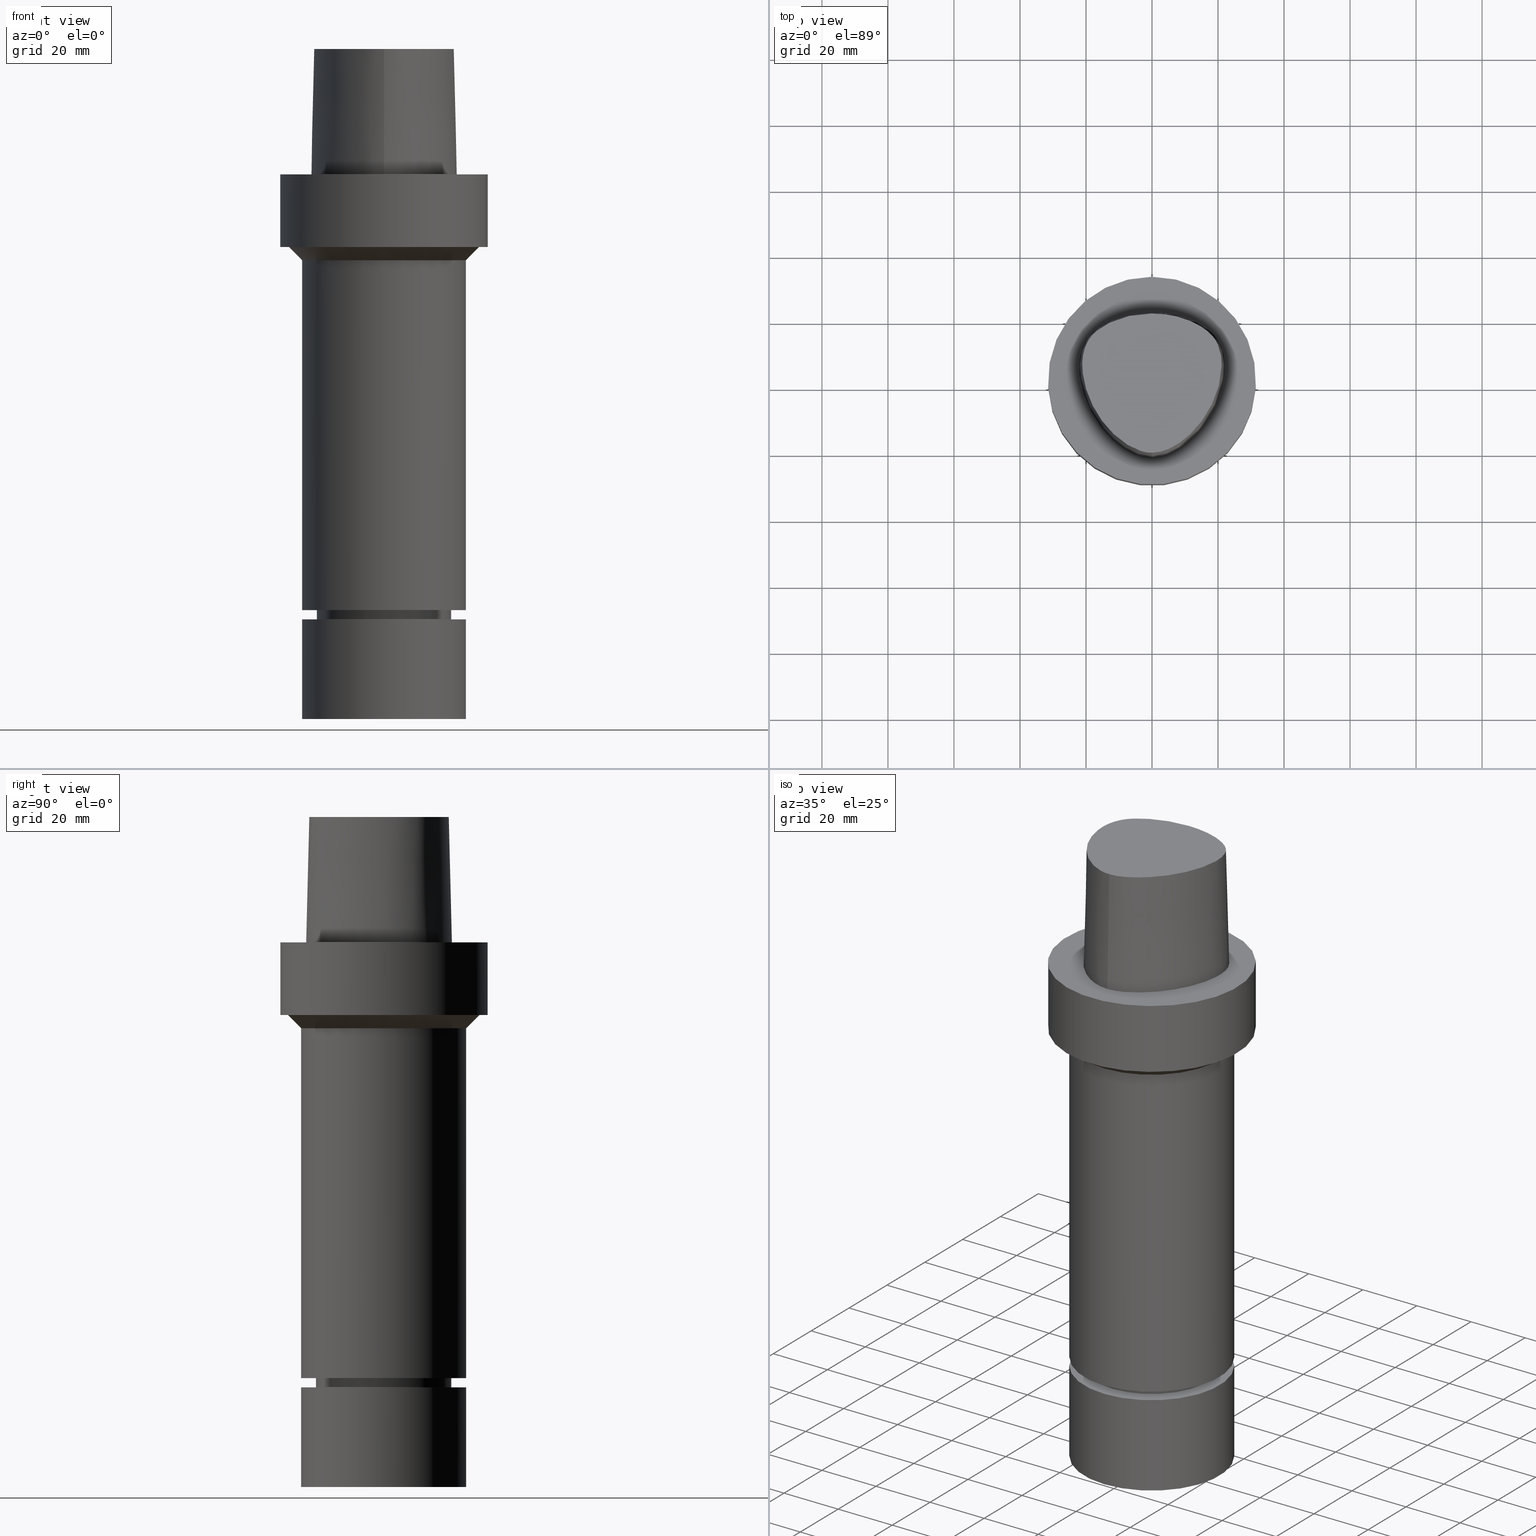
[diagram: canonical four-view strip — front | top / right | iso, engineering-drawing reading convention]
A machine part, canonical four-view strip (front | top / right | iso — engineering-drawing reading convention). The complete STEP part file that produces these views, byte-faithful:
ISO-10303-21;
HEADER;
FILE_DESCRIPTION((''),'1');
FILE_NAME('V:/90_\X2\53D65F9730C730FC30BF\X0\/00_\X2\6DE18DEF30C730FC30BF\X0\/ALL/CAPTO-BKUS\X2\52A05DE556F3\X0\_201801/C6-MEGAER/C6-MEGAER32-165NL.stp','2018-02-01T09:00:25',(''),(''),'Spatial Interop R21 SP3','Kubotek KeyCreator 2011 V10.0.2 (22737)',' ');
FILE_SCHEMA(('automotive_design'));
ENDSEC;
DATA;
#1=MECHANICAL_DESIGN_GEOMETRIC_PRESENTATION_REPRESENTATION(' ',(#14,#15,#16,#17,#18,#19,#20,#21,#22,#23,#24,#25,#26,#27,#28,#29,#30,#31,#32,#33,#34,#35,#36,#37,#38,#39,#40,#41,#42,#43,#44,#45,#46,#47,#48,#49,#50,#51,#52,#53),#10);
#2=PRODUCT_DEFINITION_CONTEXT('',#54,'design');
#3=APPLICATION_PROTOCOL_DEFINITION('INTERNATIONAL STANDARD','automotive_design',1994,#54);
#4=PRODUCT_CATEGORY_RELATIONSHIP('NONE','NONE',#55,#56);
#5=SHAPE_DEFINITION_REPRESENTATION(#57,#58);
#6=PRODUCT_DEFINITION_CONTEXT('',#59,'design');
#7=APPLICATION_PROTOCOL_DEFINITION('INTERNATIONAL STANDARD','automotive_design',1994,#59);
#8=PRODUCT_CATEGORY_RELATIONSHIP('NONE','NONE',#60,#61);
#9=SHAPE_DEFINITION_REPRESENTATION(#62,#63);
#10= (GEOMETRIC_REPRESENTATION_CONTEXT(3)GLOBAL_UNCERTAINTY_ASSIGNED_CONTEXT((#66))GLOBAL_UNIT_ASSIGNED_CONTEXT((#68,#69,#70))REPRESENTATION_CONTEXT('NONE','WORKSPACE'));
#14=STYLED_ITEM('',(#72),#73);
#15=STYLED_ITEM('',(#74,#75),#76);
#16=STYLED_ITEM('',(#77,#78),#79);
#17=STYLED_ITEM('',(#80,#81),#82);
#18=STYLED_ITEM('',(#83,#84),#85);
#19=STYLED_ITEM('',(#86,#87),#88);
#20=STYLED_ITEM('',(#89),#90);
#21=STYLED_ITEM('',(#91),#92);
#22=STYLED_ITEM('',(#93),#94);
#23=STYLED_ITEM('',(#95),#96);
#24=STYLED_ITEM('',(#97,#98),#99);
#25=STYLED_ITEM('',(#100),#101);
#26=STYLED_ITEM('',(#102,#103),#104);
#27=STYLED_ITEM('',(#105,#106),#107);
#28=STYLED_ITEM('',(#108),#109);
#29=STYLED_ITEM('',(#110),#111);
#30=STYLED_ITEM('',(#112,#113),#114);
#31=STYLED_ITEM('',(#115),#116);
#32=STYLED_ITEM('',(#117),#118);
#33=STYLED_ITEM('',(#119,#120),#121);
#34=STYLED_ITEM('',(#122,#123),#124);
#35=STYLED_ITEM('',(#125,#126),#127);
#36=STYLED_ITEM('',(#128),#129);
#37=STYLED_ITEM('',(#130,#131),#132);
#38=STYLED_ITEM('',(#133),#134);
#39=STYLED_ITEM('',(#135),#136);
#40=STYLED_ITEM('',(#137),#138);
#41=STYLED_ITEM('',(#139),#140);
#42=STYLED_ITEM('',(#141),#142);
#43=STYLED_ITEM('',(#143,#144),#145);
#44=STYLED_ITEM('',(#146,#147),#148);
#45=STYLED_ITEM('',(#149,#150),#151);
#46=STYLED_ITEM('',(#152,#153),#154);
#47=STYLED_ITEM('',(#155),#156);
#48=STYLED_ITEM('',(#157,#158),#159);
#49=STYLED_ITEM('',(#160,#161),#162);
#50=STYLED_ITEM('',(#163),#164);
#51=STYLED_ITEM('',(#165),#166);
#52=STYLED_ITEM('',(#167,#168),#169);
#53=STYLED_ITEM('',(#170),#171);
#54=APPLICATION_CONTEXT(' ');
#55=PRODUCT_CATEGORY('part','NONE');
#56=PRODUCT_RELATED_PRODUCT_CATEGORY('detail',' ',(#172));
#57=PRODUCT_DEFINITION_SHAPE('NONE','NONE',#173);
#58=ADVANCED_BREP_SHAPE_REPRESENTATION('Unnamed[1]',(#76,#174),#10);
#59=APPLICATION_CONTEXT(' ');
#60=PRODUCT_CATEGORY('part','NONE');
#61=PRODUCT_RELATED_PRODUCT_CATEGORY('detail',' ',(#175));
#62=PRODUCT_DEFINITION_SHAPE('NONE','NONE',#176);
#63=ADVANCED_BREP_SHAPE_REPRESENTATION('Unnamed[1]',(#124,#177),#10);
#66=UNCERTAINTY_MEASURE_WITH_UNIT(LENGTH_MEASURE(1.0E-006),#68,'','');
#68= (CONVERSION_BASED_UNIT('MILLIMETRE',#180)LENGTH_UNIT()NAMED_UNIT(#183));
#69= (NAMED_UNIT(#185)PLANE_ANGLE_UNIT()SI_UNIT($,.RADIAN.));
#70= (NAMED_UNIT(#185)SOLID_ANGLE_UNIT()SI_UNIT($,.STERADIAN.));
#72=PRESENTATION_STYLE_ASSIGNMENT((#191));
#73=EDGE_CURVE('Unnamed[1]',#192,#193,#194,.T.);
#74=PRESENTATION_STYLE_ASSIGNMENT((#195));
#75=PRESENTATION_STYLE_ASSIGNMENT((#196));
#76=MANIFOLD_SOLID_BREP('Unnamed[1]',#197);
#77=PRESENTATION_STYLE_ASSIGNMENT((#198));
#78=PRESENTATION_STYLE_ASSIGNMENT((#199));
#79=ADVANCED_FACE('Unnamed[1]',(#200,#201),#202,.T.);
#80=PRESENTATION_STYLE_ASSIGNMENT((#203));
#81=PRESENTATION_STYLE_ASSIGNMENT((#204));
#82=ADVANCED_FACE('Unnamed[1]',(#205),#206,.T.);
#83=PRESENTATION_STYLE_ASSIGNMENT((#207));
#84=PRESENTATION_STYLE_ASSIGNMENT((#208));
#85=ADVANCED_FACE('Unnamed[1]',(#209,#210),#211,.T.);
#86=PRESENTATION_STYLE_ASSIGNMENT((#212));
#87=PRESENTATION_STYLE_ASSIGNMENT((#213));
#88=ADVANCED_FACE('Unnamed[1]',(#214,#215),#216,.T.);
#89=PRESENTATION_STYLE_ASSIGNMENT((#217));
#90=EDGE_CURVE('Unnamed[1]',#218,#192,#219,.T.);
#91=PRESENTATION_STYLE_ASSIGNMENT((#220));
#92=EDGE_CURVE('Unnamed[1]',#193,#221,#222,.T.);
#93=PRESENTATION_STYLE_ASSIGNMENT((#223));
#94=EDGE_CURVE('Unnamed[1]',#224,#224,#225,.T.);
#95=PRESENTATION_STYLE_ASSIGNMENT((#226));
#96=EDGE_CURVE('Unnamed[1]',#227,#227,#228,.T.);
#97=PRESENTATION_STYLE_ASSIGNMENT((#229));
#98=PRESENTATION_STYLE_ASSIGNMENT((#230));
#99=ADVANCED_FACE('Unnamed[1]',(#231),#232,.T.);
#100=PRESENTATION_STYLE_ASSIGNMENT((#233));
#101=EDGE_CURVE('Unnamed[1]',#234,#234,#235,.T.);
#102=PRESENTATION_STYLE_ASSIGNMENT((#236));
#103=PRESENTATION_STYLE_ASSIGNMENT((#237));
#104=ADVANCED_FACE('Unnamed[1]',(#238,#239),#240,.T.);
#105=PRESENTATION_STYLE_ASSIGNMENT((#241));
#106=PRESENTATION_STYLE_ASSIGNMENT((#242));
#107=ADVANCED_FACE('Unnamed[1]',(#243),#244,.T.);
#108=PRESENTATION_STYLE_ASSIGNMENT((#245));
#109=EDGE_CURVE('Unnamed[1]',#246,#246,#247,.T.);
#110=PRESENTATION_STYLE_ASSIGNMENT((#248));
#111=EDGE_CURVE('Unnamed[1]',#249,#249,#250,.T.);
#112=PRESENTATION_STYLE_ASSIGNMENT((#251));
#113=PRESENTATION_STYLE_ASSIGNMENT((#252));
#114=ADVANCED_FACE('Unnamed[1]',(#253,#254),#255,.T.);
#115=PRESENTATION_STYLE_ASSIGNMENT((#256));
#116=EDGE_CURVE('Unnamed[1]',#257,#257,#258,.T.);
#117=PRESENTATION_STYLE_ASSIGNMENT((#259));
#118=EDGE_CURVE('Unnamed[1]',#260,#260,#261,.T.);
#119=PRESENTATION_STYLE_ASSIGNMENT((#262));
#120=PRESENTATION_STYLE_ASSIGNMENT((#263));
#121=ADVANCED_FACE('Unnamed[1]',(#264,#265),#266,.T.);
#122=PRESENTATION_STYLE_ASSIGNMENT((#267));
#123=PRESENTATION_STYLE_ASSIGNMENT((#268));
#124=MANIFOLD_SOLID_BREP('Unnamed[1]',#269);
#125=PRESENTATION_STYLE_ASSIGNMENT((#270));
#126=PRESENTATION_STYLE_ASSIGNMENT((#271));
#127=ADVANCED_FACE('Unnamed[1]',(#272,#273),#274,.T.);
#128=PRESENTATION_STYLE_ASSIGNMENT((#275));
#129=EDGE_CURVE('Unnamed[1]',#276,#276,#277,.T.);
#130=PRESENTATION_STYLE_ASSIGNMENT((#278));
#131=PRESENTATION_STYLE_ASSIGNMENT((#279));
#132=ADVANCED_FACE('Unnamed[1]',(#280,#281),#282,.T.);
#133=PRESENTATION_STYLE_ASSIGNMENT((#283));
#134=EDGE_CURVE('Unnamed[1]',#218,#221,#284,.T.);
#135=PRESENTATION_STYLE_ASSIGNMENT((#285));
#136=EDGE_CURVE('Unnamed[1]',#286,#193,#287,.T.);
#137=PRESENTATION_STYLE_ASSIGNMENT((#288));
#138=EDGE_CURVE('Unnamed[1]',#289,#289,#290,.T.);
#139=PRESENTATION_STYLE_ASSIGNMENT((#291));
#140=EDGE_CURVE('Unnamed[1]',#292,#292,#293,.T.);
#141=PRESENTATION_STYLE_ASSIGNMENT((#294));
#142=EDGE_CURVE('Unnamed[1]',#218,#286,#295,.T.);
#143=PRESENTATION_STYLE_ASSIGNMENT((#296));
#144=PRESENTATION_STYLE_ASSIGNMENT((#297));
#145=ADVANCED_FACE('Unnamed[1]',(#298,#299),#300,.T.);
#146=PRESENTATION_STYLE_ASSIGNMENT((#301));
#147=PRESENTATION_STYLE_ASSIGNMENT((#302));
#148=ADVANCED_FACE('Unnamed[1]',(#303),#304,.T.);
#149=PRESENTATION_STYLE_ASSIGNMENT((#305));
#150=PRESENTATION_STYLE_ASSIGNMENT((#306));
#151=ADVANCED_FACE('Unnamed[1]',(#307,#308),#309,.T.);
#152=PRESENTATION_STYLE_ASSIGNMENT((#310));
#153=PRESENTATION_STYLE_ASSIGNMENT((#311));
#154=ADVANCED_FACE('Unnamed[1]',(#312),#313,.T.);
#155=PRESENTATION_STYLE_ASSIGNMENT((#314));
#156=EDGE_CURVE('Unnamed[1]',#315,#315,#316,.T.);
#157=PRESENTATION_STYLE_ASSIGNMENT((#317));
#158=PRESENTATION_STYLE_ASSIGNMENT((#318));
#159=ADVANCED_FACE('Unnamed[1]',(#319,#320),#321,.T.);
#160=PRESENTATION_STYLE_ASSIGNMENT((#322));
#161=PRESENTATION_STYLE_ASSIGNMENT((#323));
#162=ADVANCED_FACE('Unnamed[1]',(#324),#325,.T.);
#163=PRESENTATION_STYLE_ASSIGNMENT((#326));
#164=EDGE_CURVE('Unnamed[1]',#327,#327,#328,.T.);
#165=PRESENTATION_STYLE_ASSIGNMENT((#329));
#166=EDGE_CURVE('Unnamed[1]',#221,#192,#330,.T.);
#167=PRESENTATION_STYLE_ASSIGNMENT((#331));
#168=PRESENTATION_STYLE_ASSIGNMENT((#332));
#169=ADVANCED_FACE('Unnamed[1]',(#333),#334,.T.);
#170=PRESENTATION_STYLE_ASSIGNMENT((#335));
#171=EDGE_CURVE('Unnamed[1]',#286,#218,#336,.T.);
#172=PRODUCT('Unnamed[1]','Unnamed[1]','PART-Unnamed[1]-DESC',(#337));
#173=PRODUCT_DEFINITION('NONE','NONE',#338,#2);
#174=AXIS2_PLACEMENT_3D('',#339,#340,#341);
#175=PRODUCT('Unnamed[1]','Unnamed[1]','PART-Unnamed[1]-DESC',(#342));
#176=PRODUCT_DEFINITION('NONE','NONE',#343,#6);
#177=AXIS2_PLACEMENT_3D('',#344,#345,#346);
#180=LENGTH_MEASURE_WITH_UNIT(LENGTH_MEASURE(1.0),#347);
#183=DIMENSIONAL_EXPONENTS(1.0,0.0,0.0,0.0,0.0,0.0,0.0);
#185=DIMENSIONAL_EXPONENTS(0.0,0.0,0.0,0.0,0.0,0.0,0.0);
#191=CURVE_STYLE('',#348,POSITIVE_LENGTH_MEASURE(1000.0),#349);
#192=VERTEX_POINT('',#350);
#193=VERTEX_POINT('',#351);
#194=B_SPLINE_CURVE_WITH_KNOTS('',3,(#352,#353,#354,#355,#356,#357,#358,#359,#360,#361,#362,#363,#364,#365,#366,#367,#368),.UNSPECIFIED.,.F.,.F.,(4,1,1,1,1,1,1,1,1,1,1,1,1,1,4),(-13.2302678617486,-12.816821991069,-12.4033761203893,-11.9899302497097,-11.57648437903,-11.1630385083504,-10.9563155730106,-10.7495926376707,-10.3361467669911,-9.92270089631145,-9.09580915495216,-8.26891741359287,-7.44202567223358,-7.02857980155394,-6.6151339308743),.UNSPECIFIED.);
#195=SURFACE_STYLE_USAGE(.BOTH.,#369);
#196=CURVE_STYLE('',#370,POSITIVE_LENGTH_MEASURE(1000.0),#371);
#197=CLOSED_SHELL('',(#99,#169,#82,#148,#127,#85,#145,#151,#104,#88,#114,#79,#132,#159,#107));
#198=SURFACE_STYLE_USAGE(.BOTH.,#372);
#199=CURVE_STYLE('',#373,POSITIVE_LENGTH_MEASURE(1000.0),#374);
#200=FACE_BOUND('',#375,.T.);
#201=FACE_BOUND('',#376,.T.);
#202=CONICAL_SURFACE('',#377,20.2500000000006,1.04719755120255);
#203=SURFACE_STYLE_USAGE(.BOTH.,#378);
#204=CURVE_STYLE('',#379,POSITIVE_LENGTH_MEASURE(1000.0),#380);
#205=FACE_OUTER_BOUND('',#381,.T.);
#206=CONICAL_SURFACE('',#382,1.0,0.0249931148600041);
#207=SURFACE_STYLE_USAGE(.BOTH.,#383);
#208=CURVE_STYLE('',#384,POSITIVE_LENGTH_MEASURE(1000.0),#385);
#209=FACE_BOUND('',#386,.T.);
#210=FACE_BOUND('',#387,.T.);
#211=CYLINDRICAL_SURFACE('',#388,31.5);
#212=SURFACE_STYLE_USAGE(.BOTH.,#389);
#213=CURVE_STYLE('',#390,POSITIVE_LENGTH_MEASURE(1000.0),#391);
#214=FACE_BOUND('',#392,.T.);
#215=FACE_OUTER_BOUND('',#393,.T.);
#216=PLANE('',#394);
#217=CURVE_STYLE('',#395,POSITIVE_LENGTH_MEASURE(1000.0),#396);
#218=VERTEX_POINT('',#397);
#219=LINE('',#398,#399);
#220=CURVE_STYLE('',#400,POSITIVE_LENGTH_MEASURE(1000.0),#401);
#221=VERTEX_POINT('',#402);
#222=B_SPLINE_CURVE_WITH_KNOTS('',3,(#403,#404,#405,#406,#407,#408,#409,#410,#411,#412,#413,#414,#415,#416,#417,#418,#419,#420),.UNSPECIFIED.,.F.,.F.,(4,1,1,1,1,1,1,1,1,2,1,1,1,1,4),(-6.6151339308743,-6.20168806019465,-5.78824218951501,-5.37479631883537,-4.96135044815572,-4.13445870679644,-3.30756696543715,-2.89412109475751,-2.48067522407786,-2.06722935339822,-1.65378348271857,-1.24033761203893,-0.826891741359287,-0.413445870679644,0.0),.UNSPECIFIED.);
#223=CURVE_STYLE('',#421,POSITIVE_LENGTH_MEASURE(1000.0),#422);
#224=VERTEX_POINT('',#423);
#225=CIRCLE('',#424,24.9999999999996);
#226=CURVE_STYLE('',#425,POSITIVE_LENGTH_MEASURE(1000.0),#426);
#227=VERTEX_POINT('',#427);
#228=CIRCLE('',#428,25.0);
#229=SURFACE_STYLE_USAGE(.BOTH.,#429);
#230=CURVE_STYLE('',#430,POSITIVE_LENGTH_MEASURE(1000.0),#431);
#231=FACE_OUTER_BOUND('',#432,.T.);
#232=B_SPLINE_SURFACE_WITH_KNOTS('',3,3,((#433,#434,#435,#436),(#437,#438,#439,#440),(#441,#442,#443,#444),(#445,#446,#447,#448),(#449,#450,#451,#452),(#453,#454,#455,#456),(#457,#458,#459,#460),(#461,#462,#463,#464),(#465,#466,#467,#468),(#469,#470,#471,#472),(#473,#474,#475,#476),(#477,#478,#479,#480),(#481,#482,#483,#484),(#485,#486,#487,#488),(#489,#490,#491,#492),(#493,#494,#495,#496),(#497,#498,#499,#500)),.UNSPECIFIED.,.F.,.F.,.F.,(4,1,1,1,1,1,1,1,1,1,1,1,1,1,4),(4,4),(-13.2302678617486,-12.816821991069,-12.4033761203893,-11.9899302497097,-11.57648437903,-11.1630385083504,-10.9563155730106,-10.7495926376707,-10.3361467669911,-9.92270089631145,-9.09580915495216,-8.26891741359287,-7.44202567223358,-7.02857980155394,-6.6151339308743),(-3.8,0.0),.UNSPECIFIED.);
#233=CURVE_STYLE('',#501,POSITIVE_LENGTH_MEASURE(1000.0),#502);
#234=VERTEX_POINT('',#503);
#235=CIRCLE('',#504,18.8999999999997);
#236=SURFACE_STYLE_USAGE(.BOTH.,#505);
#237=CURVE_STYLE('',#506,POSITIVE_LENGTH_MEASURE(1000.0),#507);
#238=FACE_BOUND('',#508,.T.);
#239=FACE_BOUND('',#509,.T.);
#240=CYLINDRICAL_SURFACE('',#510,24.9999999999998);
#241=SURFACE_STYLE_USAGE(.BOTH.,#511);
#242=CURVE_STYLE('',#512,POSITIVE_LENGTH_MEASURE(1000.0),#513);
#243=FACE_OUTER_BOUND('',#514,.T.);
#244=PLANE('',#515);
#245=CURVE_STYLE('',#516,POSITIVE_LENGTH_MEASURE(1000.0),#517);
#246=VERTEX_POINT('',#518);
#247=CIRCLE('',#519,20.0000000000001);
#248=CURVE_STYLE('',#520,POSITIVE_LENGTH_MEASURE(1000.0),#521);
#249=VERTEX_POINT('',#522);
#250=CIRCLE('',#523,20.5000000000012);
#251=SURFACE_STYLE_USAGE(.BOTH.,#524);
#252=CURVE_STYLE('',#525,POSITIVE_LENGTH_MEASURE(1000.0),#526);
#253=FACE_BOUND('',#527,.T.);
#254=FACE_BOUND('',#528,.T.);
#255=CYLINDRICAL_SURFACE('',#529,20.4999999999961);
#256=CURVE_STYLE('',#530,POSITIVE_LENGTH_MEASURE(1000.0),#531);
#257=VERTEX_POINT('',#532);
#258=CIRCLE('',#533,31.5);
#259=CURVE_STYLE('',#534,POSITIVE_LENGTH_MEASURE(1000.0),#535);
#260=VERTEX_POINT('',#536);
#261=CIRCLE('',#537,25.0);
#262=SURFACE_STYLE_USAGE(.BOTH.,#538);
#263=CURVE_STYLE('',#539,POSITIVE_LENGTH_MEASURE(1000.0),#540);
#264=FACE_BOUND('',#541,.T.);
#265=FACE_BOUND('',#542,.T.);
#266=CYLINDRICAL_SURFACE('',#543,25.0);
#267=SURFACE_STYLE_USAGE(.BOTH.,#544);
#268=CURVE_STYLE('',#545,POSITIVE_LENGTH_MEASURE(1000.0),#546);
#269=CLOSED_SHELL('',(#162,#154,#121));
#270=SURFACE_STYLE_USAGE(.BOTH.,#547);
#271=CURVE_STYLE('',#548,POSITIVE_LENGTH_MEASURE(1000.0),#549);
#272=FACE_BOUND('',#550,.T.);
#273=FACE_OUTER_BOUND('',#551,.T.);
#274=PLANE('',#552);
#275=CURVE_STYLE('',#553,POSITIVE_LENGTH_MEASURE(1000.0),#554);
#276=VERTEX_POINT('',#555);
#277=CIRCLE('',#556,31.5);
#278=SURFACE_STYLE_USAGE(.BOTH.,#557);
#279=CURVE_STYLE('',#558,POSITIVE_LENGTH_MEASURE(1000.0),#559);
#280=FACE_BOUND('',#560,.T.);
#281=FACE_BOUND('',#561,.T.);
#282=CYLINDRICAL_SURFACE('',#562,20.0);
#283=CURVE_STYLE('',#563,POSITIVE_LENGTH_MEASURE(1000.0),#564);
#284=LINE('',#565,#566);
#285=CURVE_STYLE('',#567,POSITIVE_LENGTH_MEASURE(1000.0),#568);
#286=VERTEX_POINT('',#569);
#287=LINE('',#570,#571);
#288=CURVE_STYLE('',#572,POSITIVE_LENGTH_MEASURE(1000.0),#573);
#289=VERTEX_POINT('',#574);
#290=CIRCLE('',#575,28.9999999999996);
#291=CURVE_STYLE('',#576,POSITIVE_LENGTH_MEASURE(1000.0),#577);
#292=VERTEX_POINT('',#578);
#293=CIRCLE('',#579,20.0);
#294=CURVE_STYLE('',#580,POSITIVE_LENGTH_MEASURE(1000.0),#581);
#295=B_SPLINE_CURVE_WITH_KNOTS('',3,(#582,#583,#584,#585,#586,#587,#588,#589,#590,#591,#592,#593,#594,#595,#596,#597),.UNSPECIFIED.,.F.,.F.,(4,1,1,1,1,1,1,1,1,1,1,1,1,4),(0.0,0.447924670568964,0.9388024242536,1.50591409090711,2.07314340012323,2.72424957442464,3.2253501842849,3.80982102049476,4.34867996267067,4.85900173381144,5.37972031856977,6.03459825488646,6.61113557741484,6.61513393087395),.UNSPECIFIED.);
#296=SURFACE_STYLE_USAGE(.BOTH.,#598);
#297=CURVE_STYLE('',#599,POSITIVE_LENGTH_MEASURE(1000.0),#600);
#298=FACE_BOUND('',#601,.T.);
#299=FACE_OUTER_BOUND('',#602,.T.);
#300=PLANE('',#603);
#301=SURFACE_STYLE_USAGE(.BOTH.,#604);
#302=CURVE_STYLE('',#605,POSITIVE_LENGTH_MEASURE(1000.0),#606);
#303=FACE_OUTER_BOUND('',#607,.T.);
#304=PLANE('',#608);
#305=SURFACE_STYLE_USAGE(.BOTH.,#609);
#306=CURVE_STYLE('',#610,POSITIVE_LENGTH_MEASURE(1000.0),#611);
#307=FACE_BOUND('',#612,.T.);
#308=FACE_BOUND('',#613,.T.);
#309=CONICAL_SURFACE('',#614,26.9999999999996,0.785398163397451);
#310=SURFACE_STYLE_USAGE(.BOTH.,#615);
#311=CURVE_STYLE('',#616,POSITIVE_LENGTH_MEASURE(1000.0),#617);
#312=FACE_OUTER_BOUND('',#618,.T.);
#313=PLANE('',#619);
#314=CURVE_STYLE('',#620,POSITIVE_LENGTH_MEASURE(1000.0),#621);
#315=VERTEX_POINT('',#622);
#316=CIRCLE('',#623,25.0);
#317=SURFACE_STYLE_USAGE(.BOTH.,#624);
#318=CURVE_STYLE('',#625,POSITIVE_LENGTH_MEASURE(1000.0),#626);
#319=FACE_BOUND('',#627,.T.);
#320=FACE_BOUND('',#628,.T.);
#321=CONICAL_SURFACE('',#629,19.4499999999999,0.523598775598222);
#322=SURFACE_STYLE_USAGE(.BOTH.,#630);
#323=CURVE_STYLE('',#631,POSITIVE_LENGTH_MEASURE(1000.0),#632);
#324=FACE_OUTER_BOUND('',#633,.T.);
#325=PLANE('',#634);
#326=CURVE_STYLE('',#635,POSITIVE_LENGTH_MEASURE(1000.0),#636);
#327=VERTEX_POINT('',#637);
#328=CIRCLE('',#638,20.4999999999911);
#329=CURVE_STYLE('',#639,POSITIVE_LENGTH_MEASURE(1000.0),#640);
#330=CIRCLE('',#641,0.949936168436318);
#331=SURFACE_STYLE_USAGE(.BOTH.,#642);
#332=CURVE_STYLE('',#643,POSITIVE_LENGTH_MEASURE(1000.0),#644);
#333=FACE_OUTER_BOUND('',#645,.T.);
#334=B_SPLINE_SURFACE_WITH_KNOTS('',3,3,((#646,#647,#648,#649),(#650,#651,#652,#653),(#654,#655,#656,#657),(#658,#659,#660,#661),(#662,#663,#664,#665),(#666,#667,#668,#669),(#670,#671,#672,#673),(#674,#675,#676,#677),(#678,#679,#680,#681),(#682,#683,#684,#685),(#686,#687,#688,#689),(#690,#691,#692,#693),(#694,#695,#696,#697),(#698,#699,#700,#701),(#702,#703,#704,#705),(#706,#707,#708,#709),(#710,#711,#712,#713),(#714,#715,#716,#717)),.UNSPECIFIED.,.F.,.F.,.F.,(4,1,1,1,1,1,1,1,1,2,1,1,1,1,4),(4,4),(-6.6151339308743,-6.20168806019465,-5.78824218951501,-5.37479631883537,-4.96135044815572,-4.13445870679644,-3.30756696543715,-2.89412109475751,-2.48067522407786,-2.06722935339822,-1.65378348271857,-1.24033761203893,-0.826891741359287,-0.413445870679644,0.0),(-3.8,0.0),.UNSPECIFIED.);
#335=CURVE_STYLE('',#718,POSITIVE_LENGTH_MEASURE(1000.0),#719);
#336=B_SPLINE_CURVE_WITH_KNOTS('',3,(#720,#721,#722,#723,#724,#725,#726,#727,#728,#729,#730,#731,#732,#733,#734,#735),.UNSPECIFIED.,.F.,.F.,(4,1,1,1,1,1,1,1,1,1,1,1,1,4),(6.61513393087476,6.99917207152274,7.48193246986995,7.96289324787093,8.45540287038584,9.10291653679981,9.67129810936083,10.1618749681153,10.6358867802489,11.1080734988593,11.6043706019633,12.09451993853,12.6985979284494,13.2302678617486),.UNSPECIFIED.);
#337=PRODUCT_CONTEXT('',#54,'mechanical');
#338=PRODUCT_DEFINITION_FORMATION_WITH_SPECIFIED_SOURCE(' ','NONE',#172,.NOT_KNOWN.);
#339=CARTESIAN_POINT('',(0.0,0.0,0.0));
#340=DIRECTION('',(0.0,0.0,1.0));
#341=DIRECTION('',(1.0,0.0,0.0));
#342=PRODUCT_CONTEXT('',#59,'mechanical');
#343=PRODUCT_DEFINITION_FORMATION_WITH_SPECIFIED_SOURCE(' ','NONE',#175,.NOT_KNOWN.);
#344=CARTESIAN_POINT('',(0.0,0.0,0.0));
#345=DIRECTION('',(0.0,0.0,1.0));
#346=DIRECTION('',(1.0,0.0,0.0));
#347= (NAMED_UNIT(#183)LENGTH_UNIT()SI_UNIT(.MILLI.,.METRE.));
#348=DRAUGHTING_PRE_DEFINED_CURVE_FONT('continuous');
#349=COLOUR_RGB('',0.0,1.0,0.0);
#350=CARTESIAN_POINT('',(0.044682985379347,20.6765087343109,1.61778115328528E-031));
#351=CARTESIAN_POINT('',(0.04359356758149,-23.4691235068931,7.78075697532443E-032));
#352=CARTESIAN_POINT('',(0.044682985379347,20.6765087343109,1.61778115328528E-031));
#353=CARTESIAN_POINT('',(1.42379272427753,20.6097915814392,8.62816615085482E-032));
#354=CARTESIAN_POINT('',(4.2230955003445,20.4837538303966,1.4791141972894E-031));
#355=CARTESIAN_POINT('',(8.47220762821777,19.6890432607088,9.86076131526265E-032));
#356=CARTESIAN_POINT('',(12.5141247708253,18.2434968480404,0.0));
#357=CARTESIAN_POINT('',(16.3038624872874,16.1734192182143,1.97215226305253E-031));
#358=CARTESIAN_POINT('',(19.1446913988473,13.7036723639434,-1.97215226305253E-031));
#359=CARTESIAN_POINT('',(20.7319894342149,11.1014620996188,0.0));
#360=CARTESIAN_POINT('',(21.7831756505763,8.28099229708081,-1.97215226305253E-031));
#361=CARTESIAN_POINT('',(22.2258240701438,4.60865440596506,0.0));
#362=CARTESIAN_POINT('',(21.7436130080666,-1.11326526354485,0.0));
#363=CARTESIAN_POINT('',(19.5519487660502,-7.95432366164584,0.0));
#364=CARTESIAN_POINT('',(14.9574167123838,-15.2089785567293,0.0));
#365=CARTESIAN_POINT('',(9.66840283021945,-20.0827414369705,-9.86076131526265E-032));
#366=CARTESIAN_POINT('',(4.51628650521788,-22.7946374572188,-9.86076131526265E-032));
#367=CARTESIAN_POINT('',(1.55867251738073,-23.4612972770043,-1.23259516440783E-032));
#368=CARTESIAN_POINT('',(0.04359356758149,-23.4691235068931,7.78075697532443E-032));
#369=SURFACE_SIDE_STYLE('',(#737));
#370=DRAUGHTING_PRE_DEFINED_CURVE_FONT('continuous');
#371=COLOUR_RGB('',0.0,1.0,0.0);
#372=SURFACE_SIDE_STYLE('',(#738));
#373=DRAUGHTING_PRE_DEFINED_CURVE_FONT('continuous');
#374=COLOUR_RGB('',0.0,1.0,0.0);
#375=EDGE_LOOP('',(#739));
#376=EDGE_LOOP('',(#740));
#377=AXIS2_PLACEMENT_3D('',#741,#742,#743);
#378=SURFACE_SIDE_STYLE('',(#744));
#379=DRAUGHTING_PRE_DEFINED_CURVE_FONT('continuous');
#380=COLOUR_RGB('',0.0,1.0,0.0);
#381=EDGE_LOOP('',(#745,#746,#747));
#382=AXIS2_PLACEMENT_3D('',#748,#749,#750);
#383=SURFACE_SIDE_STYLE('',(#751));
#384=DRAUGHTING_PRE_DEFINED_CURVE_FONT('continuous');
#385=COLOUR_RGB('',0.0,1.0,0.0);
#386=EDGE_LOOP('',(#752));
#387=EDGE_LOOP('',(#753));
#388=AXIS2_PLACEMENT_3D('',#754,#755,#756);
#389=SURFACE_SIDE_STYLE('',(#757));
#390=DRAUGHTING_PRE_DEFINED_CURVE_FONT('continuous');
#391=COLOUR_RGB('',0.0,1.0,0.0);
#392=EDGE_LOOP('',(#758));
#393=EDGE_LOOP('',(#759));
#394=AXIS2_PLACEMENT_3D('',#760,#761,#762);
#395=DRAUGHTING_PRE_DEFINED_CURVE_FONT('continuous');
#396=COLOUR_RGB('',0.0,1.0,0.0);
#397=CARTESIAN_POINT('',(-0.001218547003662,19.7276821925089,38.0));
#398=CARTESIAN_POINT('',(-0.001218547003662,19.7276821925089,38.0));
#399=VECTOR('',#763,38.0118715503078);
#400=DRAUGHTING_PRE_DEFINED_CURVE_FONT('continuous');
#401=COLOUR_RGB('',0.0,1.0,0.0);
#402=CARTESIAN_POINT('',(-0.045171994691285,20.6766009553285,1.6755590516169E-031));
#403=CARTESIAN_POINT('',(0.04359356758149,-23.4691235068931,7.78075697532443E-032));
#404=CARTESIAN_POINT('',(-1.4714994713963,-23.4767895315797,2.46519032881566E-032));
#405=CARTESIAN_POINT('',(-4.43923476371401,-22.821149804767,-4.93038065763132E-032));
#406=CARTESIAN_POINT('',(-8.35043230079961,-20.8000751253325,-9.86076131526265E-032));
#407=CARTESIAN_POINT('',(-11.744900222602,-18.1556117874078,-1.97215226305253E-031));
#408=CARTESIAN_POINT('',(-15.6989602501314,-14.0406306929147,-1.97215226305253E-031));
#409=CARTESIAN_POINT('',(-19.5352875070682,-8.00624990770787,1.97215226305253E-031));
#410=CARTESIAN_POINT('',(-21.7205626190491,-1.16081708945282,0.0));
#411=CARTESIAN_POINT('',(-22.2486616783342,4.54965558738736,0.0));
#412=CARTESIAN_POINT('',(-21.6646421256468,9.00229539124618,0.0));
#413=CARTESIAN_POINT('',(-20.3945635471922,11.7780544971003,0.0));
#414=CARTESIAN_POINT('',(-18.5925528034471,14.1980602922581,0.0));
#415=CARTESIAN_POINT('',(-16.3226584122258,16.1777748720707,0.0));
#416=CARTESIAN_POINT('',(-12.5076407874579,18.2524201541303,9.86076131526265E-032));
#417=CARTESIAN_POINT('',(-8.46776192107786,19.679114377952,9.86076131526265E-032));
#418=CARTESIAN_POINT('',(-4.23043497193604,20.487781597334,1.97215226305253E-031));
#419=CARTESIAN_POINT('',(-1.42313094248379,20.6127745766442,1.10933564796705E-031));
#420=CARTESIAN_POINT('',(-0.045171994691285,20.6766009553285,1.6755590516169E-031));
#421=DRAUGHTING_PRE_DEFINED_CURVE_FONT('continuous');
#422=COLOUR_RGB('',0.0,1.0,0.0);
#423=CARTESIAN_POINT('',(1.59204083889159E-015,24.9999999999996,-26.0000000000006));
#424=AXIS2_PLACEMENT_3D('',#764,#765,#766);
#425=DRAUGHTING_PRE_DEFINED_CURVE_FONT('continuous');
#426=COLOUR_RGB('',0.0,1.0,0.0);
#427=CARTESIAN_POINT('',(1.01033360929657E-014,25.0,-165.0));
#428=AXIS2_PLACEMENT_3D('',#767,#768,#769);
#429=SURFACE_SIDE_STYLE('',(#770));
#430=DRAUGHTING_PRE_DEFINED_CURVE_FONT('continuous');
#431=COLOUR_RGB('',0.0,1.0,0.0);
#432=EDGE_LOOP('',(#771,#772,#773,#774));
#433=CARTESIAN_POINT('',(-0.001218367817519,19.7276822012873,38.0));
#434=CARTESIAN_POINT('',(0.014082083248157,20.0439577123075,25.3333333333066));
#435=CARTESIAN_POINT('',(0.029382534313671,20.3602332232908,12.6666666666934));
#436=CARTESIAN_POINT('',(0.044682985379347,20.6765087343109,1.61778115328528E-031));
#437=CARTESIAN_POINT('',(1.37788651195108,19.6609652834875,38.0));
#438=CARTESIAN_POINT('',(1.3931885827258,19.9772407169847,25.3333333333066));
#439=CARTESIAN_POINT('',(1.40849065356095,20.2935162254648,12.6666666666934));
#440=CARTESIAN_POINT('',(1.42379272427753,20.6097915814392,8.62816615085482E-032));
#441=CARTESIAN_POINT('',(4.135446440878,19.5347778787784,38.0));
#442=CARTESIAN_POINT('',(4.16466278851883,19.8511031866125,25.3333333333066));
#443=CARTESIAN_POINT('',(4.1938791526746,20.1674284644204,12.6666666666934));
#444=CARTESIAN_POINT('',(4.2230955003445,20.4837538303966,1.4791141972894E-031));
#445=CARTESIAN_POINT('',(8.213607363795,18.7706026638736,38.0));
#446=CARTESIAN_POINT('',(8.29980745008421,19.0767495109635,25.3333333333066));
#447=CARTESIAN_POINT('',(8.38600751285747,19.3828964329996,12.6666666666934));
#448=CARTESIAN_POINT('',(8.47220762821777,19.6890432607088,9.86076131526265E-032));
#449=CARTESIAN_POINT('',(12.1316338645671,17.3698624840857,38.0));
#450=CARTESIAN_POINT('',(12.2591308270381,17.6610739397708,25.3333333333066));
#451=CARTESIAN_POINT('',(12.3866278083543,17.9522853923553,12.6666666666934));
#452=CARTESIAN_POINT('',(12.5141247708253,18.2434968480404,0.0));
#453=CARTESIAN_POINT('',(15.7706546153679,15.3789501349612,38.0));
#454=CARTESIAN_POINT('',(15.9483905900895,15.6437731794811,25.3333333333066));
#455=CARTESIAN_POINT('',(16.1261265513272,15.9085961736944,12.6666666666934));
#456=CARTESIAN_POINT('',(16.3038624872874,16.1734192182143,1.97215226305253E-031));
#457=CARTESIAN_POINT('',(18.4265894256284,13.0570022172893,38.0));
#458=CARTESIAN_POINT('',(18.6659567517146,13.2725589420689,25.3333333333066));
#459=CARTESIAN_POINT('',(18.9053240921419,13.4881156488541,12.6666666666934));
#460=CARTESIAN_POINT('',(19.1446913988473,13.7036723639434,-1.97215226305253E-031));
#461=CARTESIAN_POINT('',(19.8679958653038,10.6923771981998,38.0));
#462=CARTESIAN_POINT('',(20.1559937048299,10.8287388264873,25.3333333333066));
#463=CARTESIAN_POINT('',(20.4439915656177,10.965100461641,12.6666666666934));
#464=CARTESIAN_POINT('',(20.7319894342149,11.1014620996188,0.0));
#465=CARTESIAN_POINT('',(20.8470867582337,8.07149548576131,38.0));
#466=CARTESIAN_POINT('',(21.1591164072431,8.14132775555392,25.3333333333066));
#467=CARTESIAN_POINT('',(21.4711459821861,8.21116003697855,12.6666666666934));
#468=CARTESIAN_POINT('',(21.7831756505763,8.28099229708081,-1.97215226305253E-031));
#469=CARTESIAN_POINT('',(21.2693244256982,4.61157245650171,38.0));
#470=CARTESIAN_POINT('',(21.5881576801997,4.6105997689982,25.3333333333066));
#471=CARTESIAN_POINT('',(21.9069908544037,4.60962709346857,12.6666666666934));
#472=CARTESIAN_POINT('',(22.2258240701438,4.60865440596506,0.0));
#473=CARTESIAN_POINT('',(20.8071610855575,-0.912828649855193,38.0));
#474=CARTESIAN_POINT('',(21.119311671178,-0.979640884839481,25.3333333333066));
#475=CARTESIAN_POINT('',(21.4314624224461,-1.04645306732201,12.6666666666934));
#476=CARTESIAN_POINT('',(21.7436130080666,-1.11326526354485,0.0));
#477=CARTESIAN_POINT('',(18.6841935581315,-7.54428794252837,38.0));
#478=CARTESIAN_POINT('',(18.9734452551861,-7.6809665891091,25.3333333333066));
#479=CARTESIAN_POINT('',(19.2626970689956,-7.81764505382656,12.6666666666934));
#480=CARTESIAN_POINT('',(19.5519487660502,-7.95432366164584,0.0));
#481=CARTESIAN_POINT('',(14.2175552814,-14.5971504342323,38.0));
#482=CARTESIAN_POINT('',(14.4641757465198,-14.8010930946929,25.3333333333066));
#483=CARTESIAN_POINT('',(14.710796247264,-15.0050359737917,12.6666666666934));
#484=CARTESIAN_POINT('',(14.9574167123838,-15.2089785567293,0.0));
#485=CARTESIAN_POINT('',(9.0844808732933,-19.3179298129689,38.0));
#486=CARTESIAN_POINT('',(9.27912152349017,-19.572866915557,25.3333333333066));
#487=CARTESIAN_POINT('',(9.47376218971294,-19.827804295621,12.6666666666934));
#488=CARTESIAN_POINT('',(9.66840283021945,-20.0827414369705,-9.86076131526265E-032));
#489=CARTESIAN_POINT('',(4.17112919194182,-21.8987568152736,38.0));
#490=CARTESIAN_POINT('',(4.28618163483998,-22.1973837173649,25.3333333333066));
#491=CARTESIAN_POINT('',(4.40123406239433,-22.4960105163661,12.6666666666934));
#492=CARTESIAN_POINT('',(4.51628650521788,-22.7946374572188,-9.86076131526265E-032));
#493=CARTESIAN_POINT('',(1.41533654381097,-22.5120888467812,38.0));
#494=CARTESIAN_POINT('',(1.46311520162011,-22.8284916374445,25.3333333333066));
#495=CARTESIAN_POINT('',(1.51089385942236,-23.144894486341,12.6666666666934));
#496=CARTESIAN_POINT('',(1.55867251738073,-23.4612972770043,-1.23259516440783E-032));
#497=CARTESIAN_POINT('',(0.038736923393866,-22.5191997536361,38.0));
#498=CARTESIAN_POINT('',(0.04035580478973,-22.8358410047159,25.3333333333066));
#499=CARTESIAN_POINT('',(0.041974686185626,-23.1524822558133,12.6666666666934));
#500=CARTESIAN_POINT('',(0.04359356758149,-23.4691235068931,7.78075697532443E-032));
#501=DRAUGHTING_PRE_DEFINED_CURVE_FONT('continuous');
#502=COLOUR_RGB('',0.0,1.0,0.0);
#503=CARTESIAN_POINT('',(9.42978035343463E-015,18.8999999999997,-154.0));
#504=AXIS2_PLACEMENT_3D('',#775,#776,#777);
#505=SURFACE_SIDE_STYLE('',(#778));
#506=DRAUGHTING_PRE_DEFINED_CURVE_FONT('continuous');
#507=COLOUR_RGB('',0.0,1.0,0.0);
#508=EDGE_LOOP('',(#779));
#509=EDGE_LOOP('',(#780));
#510=AXIS2_PLACEMENT_3D('',#781,#782,#783);
#511=SURFACE_SIDE_STYLE('',(#784));
#512=DRAUGHTING_PRE_DEFINED_CURVE_FONT('continuous');
#513=COLOUR_RGB('',0.0,1.0,0.0);
#514=EDGE_LOOP('',(#785));
#515=AXIS2_PLACEMENT_3D('',#786,#787,#788);
#516=DRAUGHTING_PRE_DEFINED_CURVE_FONT('continuous');
#517=COLOUR_RGB('',0.0,1.0,0.0);
#518=CARTESIAN_POINT('',(9.31311707717483E-015,20.0000000000001,-152.094744111673));
#519=AXIS2_PLACEMENT_3D('',#789,#790,#791);
#520=DRAUGHTING_PRE_DEFINED_CURVE_FONT('continuous');
#521=COLOUR_RGB('',0.0,1.0,0.0);
#522=CARTESIAN_POINT('',(8.46301247845949E-015,20.5000000000012,-138.211482434801));
#523=AXIS2_PLACEMENT_3D('',#792,#793,#794);
#524=SURFACE_SIDE_STYLE('',(#795));
#525=DRAUGHTING_PRE_DEFINED_CURVE_FONT('continuous');
#526=COLOUR_RGB('',0.0,1.0,0.0);
#527=EDGE_LOOP('',(#796));
#528=EDGE_LOOP('',(#797));
#529=AXIS2_PLACEMENT_3D('',#798,#799,#800);
#530=DRAUGHTING_PRE_DEFINED_CURVE_FONT('continuous');
#531=COLOUR_RGB('',0.0,1.0,0.0);
#532=CARTESIAN_POINT('',(-3.88267476788467E-031,31.5,3.85763741731416E-015));
#533=AXIS2_PLACEMENT_3D('',#801,#802,#803);
#534=DRAUGHTING_PRE_DEFINED_CURVE_FONT('continuous');
#535=COLOUR_RGB('',0.0,1.0,0.0);
#536=CARTESIAN_POINT('',(8.08267852271583E-015,25.0,-132.000157569404));
#537=AXIS2_PLACEMENT_3D('',#804,#805,#806);
#538=SURFACE_SIDE_STYLE('',(#807));
#539=DRAUGHTING_PRE_DEFINED_CURVE_FONT('continuous');
#540=COLOUR_RGB('',0.0,1.0,0.0);
#541=EDGE_LOOP('',(#808));
#542=EDGE_LOOP('',(#809));
#543=AXIS2_PLACEMENT_3D('',#810,#811,#812);
#544=SURFACE_SIDE_STYLE('',(#813));
#545=DRAUGHTING_PRE_DEFINED_CURVE_FONT('continuous');
#546=COLOUR_RGB('',0.0,1.0,0.0);
#547=SURFACE_SIDE_STYLE('',(#814));
#548=DRAUGHTING_PRE_DEFINED_CURVE_FONT('continuous');
#549=COLOUR_RGB('',0.0,1.0,0.0);
#550=EDGE_LOOP('',(#815,#816,#817));
#551=EDGE_LOOP('',(#818));
#552=AXIS2_PLACEMENT_3D('',#819,#820,#821);
#553=DRAUGHTING_PRE_DEFINED_CURVE_FONT('continuous');
#554=COLOUR_RGB('',0.0,1.0,0.0);
#555=CARTESIAN_POINT('',(1.34711147906212E-015,31.5,-22.0000000000006));
#556=AXIS2_PLACEMENT_3D('',#822,#823,#824);
#557=SURFACE_SIDE_STYLE('',(#825));
#558=DRAUGHTING_PRE_DEFINED_CURVE_FONT('continuous');
#559=COLOUR_RGB('',0.0,1.0,0.0);
#560=EDGE_LOOP('',(#826));
#561=EDGE_LOOP('',(#827));
#562=AXIS2_PLACEMENT_3D('',#828,#829,#830);
#563=DRAUGHTING_PRE_DEFINED_CURVE_FONT('continuous');
#564=COLOUR_RGB('',0.0,1.0,0.0);
#565=CARTESIAN_POINT('',(-0.001218547003662,19.7276821925089,38.0));
#566=VECTOR('',#831,38.0118715498723);
#567=DRAUGHTING_PRE_DEFINED_CURVE_FONT('continuous');
#568=COLOUR_RGB('',0.0,1.0,0.0);
#569=CARTESIAN_POINT('',(0.038736923393866,-22.5191997536361,38.0));
#570=CARTESIAN_POINT('',(0.038736923393866,-22.5191997536361,38.0));
#571=VECTOR('',#832,38.0118715498723);
#572=DRAUGHTING_PRE_DEFINED_CURVE_FONT('continuous');
#573=COLOUR_RGB('',0.0,1.0,0.0);
#574=CARTESIAN_POINT('',(1.34711147906212E-015,28.9999999999996,-22.0000000000006));
#575=AXIS2_PLACEMENT_3D('',#833,#834,#835);
#576=DRAUGHTING_PRE_DEFINED_CURVE_FONT('continuous');
#577=COLOUR_RGB('',0.0,1.0,0.0);
#578=CARTESIAN_POINT('',(8.48068873243803E-015,20.0,-138.500157569393));
#579=AXIS2_PLACEMENT_3D('',#836,#837,#838);
#580=DRAUGHTING_PRE_DEFINED_CURVE_FONT('continuous');
#581=COLOUR_RGB('',0.0,1.0,0.0);
#582=CARTESIAN_POINT('',(-0.001218547003662,19.7276821925089,38.0));
#583=CARTESIAN_POINT('',(-1.49408492138443,19.6585333605309,38.0));
#584=CARTESIAN_POINT('',(-4.62297391420352,19.513604770166,38.0));
#585=CARTESIAN_POINT('',(-9.56160616752212,18.4291575730197,38.0));
#586=CARTESIAN_POINT('',(-14.5427684976927,16.2697452580488,38.0));
#587=CARTESIAN_POINT('',(-19.4315563551602,12.5302108980807,38.0));
#588=CARTESIAN_POINT('',(-21.306358833612,6.76352894547076,38.0));
#589=CARTESIAN_POINT('',(-21.0724946936277,0.957075236984038,38.0));
#590=CARTESIAN_POINT('',(-19.7876470880144,-4.34628503581652,38.0));
#591=CARTESIAN_POINT('',(-17.5396999600095,-9.33314444653089,38.0));
#592=CARTESIAN_POINT('',(-14.645447733857,-13.7185760345629,38.0));
#593=CARTESIAN_POINT('',(-10.7996726536643,-17.856257282137,38.0));
#594=CARTESIAN_POINT('',(-6.00479510196376,-21.2687382067675,38.0));
#595=CARTESIAN_POINT('',(-1.90747171908525,-22.5250621415864,38.0));
#596=CARTESIAN_POINT('',(0.025424107066464,-22.5192678176378,38.0));
#597=CARTESIAN_POINT('',(0.038736923394311,-22.519199753636,38.0));
#598=SURFACE_SIDE_STYLE('',(#839));
#599=DRAUGHTING_PRE_DEFINED_CURVE_FONT('continuous');
#600=COLOUR_RGB('',0.0,1.0,0.0);
#601=EDGE_LOOP('',(#840));
#602=EDGE_LOOP('',(#841));
#603=AXIS2_PLACEMENT_3D('',#842,#843,#844);
#604=SURFACE_SIDE_STYLE('',(#845));
#605=DRAUGHTING_PRE_DEFINED_CURVE_FONT('continuous');
#606=COLOUR_RGB('',0.0,1.0,0.0);
#607=EDGE_LOOP('',(#846,#847));
#608=AXIS2_PLACEMENT_3D('',#848,#849,#850);
#609=SURFACE_SIDE_STYLE('',(#851));
#610=DRAUGHTING_PRE_DEFINED_CURVE_FONT('continuous');
#611=COLOUR_RGB('',0.0,1.0,0.0);
#612=EDGE_LOOP('',(#852));
#613=EDGE_LOOP('',(#853));
#614=AXIS2_PLACEMENT_3D('',#854,#855,#856);
#615=SURFACE_SIDE_STYLE('',(#857));
#616=DRAUGHTING_PRE_DEFINED_CURVE_FONT('continuous');
#617=COLOUR_RGB('',0.0,1.0,0.0);
#618=EDGE_LOOP('',(#858));
#619=AXIS2_PLACEMENT_3D('',#859,#860,#861);
#620=DRAUGHTING_PRE_DEFINED_CURVE_FONT('continuous');
#621=COLOUR_RGB('',0.0,1.0,0.0);
#622=CARTESIAN_POINT('',(8.25411942625316E-015,25.0,-134.8));
#623=AXIS2_PLACEMENT_3D('',#862,#863,#864);
#624=SURFACE_SIDE_STYLE('',(#865));
#625=DRAUGHTING_PRE_DEFINED_CURVE_FONT('continuous');
#626=COLOUR_RGB('',0.0,1.0,0.0);
#627=EDGE_LOOP('',(#866));
#628=EDGE_LOOP('',(#867));
#629=AXIS2_PLACEMENT_3D('',#868,#869,#870);
#630=SURFACE_SIDE_STYLE('',(#871));
#631=DRAUGHTING_PRE_DEFINED_CURVE_FONT('continuous');
#632=COLOUR_RGB('',0.0,1.0,0.0);
#633=EDGE_LOOP('',(#872));
#634=AXIS2_PLACEMENT_3D('',#873,#874,#875);
#635=DRAUGHTING_PRE_DEFINED_CURVE_FONT('continuous');
#636=COLOUR_RGB('',0.0,1.0,0.0);
#637=CARTESIAN_POINT('',(8.08267852271585E-015,20.4999999999911,-132.000157569404));
#638=AXIS2_PLACEMENT_3D('',#876,#877,#878);
#639=DRAUGHTING_PRE_DEFINED_CURVE_FONT('continuous');
#640=COLOUR_RGB('',0.0,1.0,0.0);
#641=AXIS2_PLACEMENT_3D('',#879,#880,#881);
#642=SURFACE_SIDE_STYLE('',(#882));
#643=DRAUGHTING_PRE_DEFINED_CURVE_FONT('continuous');
#644=COLOUR_RGB('',0.0,1.0,0.0);
#645=EDGE_LOOP('',(#883,#884,#885,#886));
#646=CARTESIAN_POINT('',(0.038736923393866,-22.5191997536361,38.0));
#647=CARTESIAN_POINT('',(0.04035580478973,-22.8358410047159,25.3333333333066));
#648=CARTESIAN_POINT('',(0.041974686185626,-23.1524822558133,12.6666666666934));
#649=CARTESIAN_POINT('',(0.04359356758149,-23.4691235068931,7.78075697532443E-032));
#650=CARTESIAN_POINT('',(-1.33786123484754,-22.5261650259856,38.0));
#651=CARTESIAN_POINT('',(-1.38240731367927,-22.8430399310626,25.3333333333066));
#652=CARTESIAN_POINT('',(-1.42695339249092,-23.1599147815484,12.6666666666934));
#653=CARTESIAN_POINT('',(-1.4714994713963,-23.4767895315797,2.46519032881566E-032));
#654=CARTESIAN_POINT('',(-4.08909358431842,-21.9268839879558,38.0));
#655=CARTESIAN_POINT('',(-4.20580731135515,-22.2249725500078,25.3333333333066));
#656=CARTESIAN_POINT('',(-4.32252104640446,-22.5230611651922,12.6666666666934));
#657=CARTESIAN_POINT('',(-4.43923476371401,-22.821149804767,-4.93038065763132E-032));
#658=CARTESIAN_POINT('',(-7.8333083619947,-19.9973514861616,38.0));
#659=CARTESIAN_POINT('',(-8.00568301809614,-20.2649260859405,25.3333333333066));
#660=CARTESIAN_POINT('',(-8.1780576640789,-20.532500564315,12.6666666666934));
#661=CARTESIAN_POINT('',(-8.35043230079961,-20.8000751253325,-9.86076131526265E-032));
#662=CARTESIAN_POINT('',(-11.1035071147626,-17.450554957873,38.0));
#663=CARTESIAN_POINT('',(-11.3173048160562,-17.6855739222454,25.3333333333066));
#664=CARTESIAN_POINT('',(-11.5311025116181,-17.9205928617968,12.6666666666934));
#665=CARTESIAN_POINT('',(-11.744900222602,-18.1556117874078,-1.97215226305253E-031));
#666=CARTESIAN_POINT('',(-14.9379535189057,-13.461132049697,38.0));
#667=CARTESIAN_POINT('',(-15.191622410671,-13.6542981711372,25.3333333333066));
#668=CARTESIAN_POINT('',(-15.4452913389853,-13.8474645327131,12.6666666666934));
#669=CARTESIAN_POINT('',(-15.6989602501314,-14.0406306929147,-1.97215226305253E-031));
#670=CARTESIAN_POINT('',(-18.6681263017223,-7.59391757463204,38.0));
#671=CARTESIAN_POINT('',(-18.9571800800711,-7.73136168081928,25.3333333333066));
#672=CARTESIAN_POINT('',(-19.2462337287194,-7.86880572399774,12.6666666666934));
#673=CARTESIAN_POINT('',(-19.5352875070682,-8.00624990770787,1.97215226305253E-031));
#674=CARTESIAN_POINT('',(-20.7857899858339,-0.952862819790525,38.0));
#675=CARTESIAN_POINT('',(-21.0973808305434,-1.02218087467418,25.3333333333066));
#676=CARTESIAN_POINT('',(-21.408971677436,-1.09149899580772,12.6666666666934));
#677=CARTESIAN_POINT('',(-21.7205626190491,-1.16081708945282,0.0));
#678=CARTESIAN_POINT('',(-21.2911760556836,4.5469215763113,38.0));
#679=CARTESIAN_POINT('',(-21.610337904926,4.54783292082248,25.3333333333066));
#680=CARTESIAN_POINT('',(-21.9294998290918,4.54874426225691,12.6666666666934));
#681=CARTESIAN_POINT('',(-22.2486616783342,4.54965558738736,0.0));
#682=CARTESIAN_POINT('',(-20.7345309521958,8.74909381391006,38.0));
#683=CARTESIAN_POINT('',(-21.0445680426217,8.83349432450556,25.3333333333066));
#684=CARTESIAN_POINT('',(-21.3546050933631,8.91789488065068,12.6666666666934));
#685=CARTESIAN_POINT('',(-21.6646421256468,9.00229539124618,0.0));
#686=CARTESIAN_POINT('',(-19.5531512296439,11.3174844040833,38.0));
#687=CARTESIAN_POINT('',(-19.8336219699984,11.4710077674213,25.3333333333066));
#688=CARTESIAN_POINT('',(-20.1140927680763,11.6245311337623,12.6666666666934));
#689=CARTESIAN_POINT('',(-20.3945635471922,11.7780544971003,0.0));
#690=CARTESIAN_POINT('',(-17.9100913688793,13.524027510437,38.0));
#691=CARTESIAN_POINT('',(-18.1375785458768,13.7487051053655,25.3333333333066));
#692=CARTESIAN_POINT('',(-18.365065665211,13.9733826973296,12.6666666666934));
#693=CARTESIAN_POINT('',(-18.5925528034471,14.1980602922581,0.0));
#694=CARTESIAN_POINT('',(-15.7996349656398,15.3762170634413,38.0));
#695=CARTESIAN_POINT('',(-15.9739761051783,15.6434029846179,25.3333333333066));
#696=CARTESIAN_POINT('',(-16.1483172726872,15.9105889315134,12.6666666666934));
#697=CARTESIAN_POINT('',(-16.3226584122258,16.1777748720707,0.0));
#698=CARTESIAN_POINT('',(-12.1175640002064,17.3825162484012,38.0));
#699=CARTESIAN_POINT('',(-12.2475895903055,17.6724842099619,25.3333333333066));
#700=CARTESIAN_POINT('',(-12.3776152070492,17.9624521925696,12.6666666666934));
#701=CARTESIAN_POINT('',(-12.5076407874579,18.2524201541303,9.86076131526265E-032));
#702=CARTESIAN_POINT('',(-8.21761151654222,18.7588585989994,38.0));
#703=CARTESIAN_POINT('',(-8.30099497910627,19.0656105427881,25.3333333333066));
#704=CARTESIAN_POINT('',(-8.38437843913309,19.3723624535439,12.6666666666934));
#705=CARTESIAN_POINT('',(-8.46776192107786,19.679114377952,9.86076131526265E-032));
#706=CARTESIAN_POINT('',(-4.13466093881225,19.5396850837055,38.0));
#707=CARTESIAN_POINT('',(-4.16658562115465,19.8557172636973,25.3333333333066));
#708=CARTESIAN_POINT('',(-4.19851029939059,20.1717494367229,12.6666666666934));
#709=CARTESIAN_POINT('',(-4.23043497193604,20.487781597334,1.97215226305253E-031));
#710=CARTESIAN_POINT('',(-1.37917220403684,19.6638560588908,38.0));
#711=CARTESIAN_POINT('',(-1.39382511685176,19.98016223565,25.3333333333066));
#712=CARTESIAN_POINT('',(-1.40847802945569,20.296468399885,12.6666666666934));
#713=CARTESIAN_POINT('',(-1.42313094248379,20.6127745766442,1.10933564796705E-031));
#714=CARTESIAN_POINT('',(-0.001218547003662,19.7276821925089,38.0));
#715=CARTESIAN_POINT('',(-0.015869696232855,20.043988446791,25.3333333333066));
#716=CARTESIAN_POINT('',(-0.030520845462092,20.3602947010464,12.6666666666934));
#717=CARTESIAN_POINT('',(-0.045171994691285,20.6766009553285,1.6755590516169E-031));
#718=DRAUGHTING_PRE_DEFINED_CURVE_FONT('continuous');
#719=COLOUR_RGB('',0.0,1.0,0.0);
#720=CARTESIAN_POINT('',(0.038736923394311,-22.519199753636,38.0));
#721=CARTESIAN_POINT('',(1.31742058183662,-22.512662269405,38.0));
#722=CARTESIAN_POINT('',(4.2093773447498,-21.9116226439989,38.0));
#723=CARTESIAN_POINT('',(8.20895504542113,-19.7798683845067,38.0));
#724=CARTESIAN_POINT('',(11.9784633234593,-16.681663904162,38.0));
#725=CARTESIAN_POINT('',(15.5308821579362,-12.5807487594113,38.0));
#726=CARTESIAN_POINT('',(18.4566248438667,-7.64932246015528,38.0));
#727=CARTESIAN_POINT('',(20.4036090752029,-2.27012499825289,38.0));
#728=CARTESIAN_POINT('',(21.2357187429189,2.79891401173156,38.0));
#729=CARTESIAN_POINT('',(21.0811206267748,7.62543090736657,38.0));
#730=CARTESIAN_POINT('',(19.3383577336563,12.2772250726194,38.0));
#731=CARTESIAN_POINT('',(15.5796322014404,15.5799672120682,38.0));
#732=CARTESIAN_POINT('',(10.8392956074438,17.9834601687347,38.0));
#733=CARTESIAN_POINT('',(5.56068045850571,19.4586143858472,38.0));
#734=CARTESIAN_POINT('',(1.77223893711014,19.6418877095654,38.0));
#735=CARTESIAN_POINT('',(-0.001218367817519,19.7276822012873,38.0));
#737=SURFACE_STYLE_FILL_AREA(#887);
#738=SURFACE_STYLE_FILL_AREA(#888);
#739=ORIENTED_EDGE('',*,*,#140,.F.);
#740=ORIENTED_EDGE('',*,*,#111,.T.);
#741=CARTESIAN_POINT('',(8.47185060544876E-015,1.69437012108975E-014,-138.355820002097));
#742=DIRECTION('',(-6.12323399573677E-017,-1.22464679914735E-016,1.0));
#743=DIRECTION('',(-1.23259516440783E-032,1.0,1.22464679914735E-016));
#744=SURFACE_STYLE_FILL_AREA(#889);
#745=ORIENTED_EDGE('',*,*,#166,.F.);
#746=ORIENTED_EDGE('',*,*,#134,.F.);
#747=ORIENTED_EDGE('',*,*,#90,.T.);
#748=CARTESIAN_POINT('',(-0.001218547003662,19.7276821925089,-2.00268782779425));
#749=DIRECTION('',(2.1678647975542E-051,-3.42380273908985E-049,-1.0));
#750=DIRECTION('',(-0.046269895968506,0.99892897481606,-3.42113882891801E-049));
#751=SURFACE_STYLE_FILL_AREA(#890);
#752=ORIENTED_EDGE('',*,*,#129,.F.);
#753=ORIENTED_EDGE('',*,*,#116,.T.);
#754=CARTESIAN_POINT('',(6.73555739531062E-016,1.34711147906212E-015,-11.0000000000003));
#755=DIRECTION('',(6.12323399573677E-017,1.22464679914735E-016,-1.0));
#756=DIRECTION('',(-1.23259516440783E-032,1.0,1.22464679914735E-016));
#757=SURFACE_STYLE_FILL_AREA(#891);
#758=ORIENTED_EDGE('',*,*,#164,.F.);
#759=ORIENTED_EDGE('',*,*,#118,.T.);
#760=CARTESIAN_POINT('',(8.08267852271584E-015,22.7499999999956,-132.000157569404));
#761=DIRECTION('',(6.12323399573677E-017,1.0749336697234E-013,-1.0));
#762=DIRECTION('',(-6.58689754234317E-030,1.0,1.0749336697234E-013));
#763=DIRECTION('',(0.001207557810519,0.024961321374199,-0.999687688350411));
#764=CARTESIAN_POINT('',(1.59204083889159E-015,3.18408167778319E-015,-26.0000000000006));
#765=DIRECTION('',(6.12323399573677E-017,1.22464679914735E-016,-1.0));
#766=DIRECTION('',(-1.23259516440783E-032,1.0,1.22464679914735E-016));
#767=CARTESIAN_POINT('',(1.01033360929657E-014,2.02066721859313E-014,-165.0));
#768=DIRECTION('',(6.12323399573677E-017,1.22464679914735E-016,-1.0));
#769=DIRECTION('',(-1.23259516440783E-032,1.0,1.22464679914735E-016));
#770=SURFACE_STYLE_FILL_AREA(#892);
#771=ORIENTED_EDGE('',*,*,#73,.F.);
#772=ORIENTED_EDGE('',*,*,#90,.F.);
#773=ORIENTED_EDGE('',*,*,#171,.F.);
#774=ORIENTED_EDGE('',*,*,#136,.T.);
#775=CARTESIAN_POINT('',(9.42978035343463E-015,1.88595607068693E-014,-154.0));
#776=DIRECTION('',(6.12323399573677E-017,1.22464679914735E-016,-1.0));
#777=DIRECTION('',(-1.23259516440783E-032,1.0,1.22464679914735E-016));
#778=SURFACE_STYLE_FILL_AREA(#893);
#779=ORIENTED_EDGE('',*,*,#118,.F.);
#780=ORIENTED_EDGE('',*,*,#94,.T.);
#781=CARTESIAN_POINT('',(4.83735968080371E-015,9.67471936160742E-015,-79.0000787847021));
#782=DIRECTION('',(6.12323399573677E-017,1.22464679914735E-016,-1.0));
#783=DIRECTION('',(-1.23259516440783E-032,1.0,1.22464679914735E-016));
#784=SURFACE_STYLE_FILL_AREA(#894);
#785=ORIENTED_EDGE('',*,*,#101,.T.);
#786=CARTESIAN_POINT('',(9.42978035343462E-015,9.44999999999987,-154.0));
#787=DIRECTION('',(6.12323399573677E-017,-1.64192709674106E-014,-1.0));
#788=DIRECTION('',(1.00056322899785E-030,1.0,-1.64192709674106E-014));
#789=CARTESIAN_POINT('',(9.31311707717483E-015,1.86262341543497E-014,-152.094744111673));
#790=DIRECTION('',(6.12323399573677E-017,1.22464679914735E-016,-1.0));
#791=DIRECTION('',(-1.23259516440783E-032,1.0,1.22464679914735E-016));
#792=CARTESIAN_POINT('',(8.46301247845949E-015,1.6926024956919E-014,-138.211482434801));
#793=DIRECTION('',(6.12323399573677E-017,1.22464679914735E-016,-1.0));
#794=DIRECTION('',(-1.23259516440783E-032,1.0,1.22464679914735E-016));
#795=SURFACE_STYLE_FILL_AREA(#895);
#796=ORIENTED_EDGE('',*,*,#111,.F.);
#797=ORIENTED_EDGE('',*,*,#164,.T.);
#798=CARTESIAN_POINT('',(8.27284550058767E-015,1.65456910011753E-014,-135.105820002103));
#799=DIRECTION('',(6.12323399573677E-017,1.22464679914735E-016,-1.0));
#800=DIRECTION('',(-1.23259516440783E-032,1.0,1.22464679914735E-016));
#801=CARTESIAN_POINT('',(0.0,0.0,0.0));
#802=DIRECTION('',(6.12323399573677E-017,1.22464679914735E-016,-1.0));
#803=DIRECTION('',(-1.23259516440783E-032,1.0,1.22464679914735E-016));
#804=CARTESIAN_POINT('',(8.08267852271583E-015,1.61653570454317E-014,-132.000157569404));
#805=DIRECTION('',(6.12323399573676E-017,1.22464679914735E-016,-1.0));
#806=DIRECTION('',(-1.23259516440783E-032,1.0,1.22464679914735E-016));
#807=SURFACE_STYLE_FILL_AREA(#896);
#808=ORIENTED_EDGE('',*,*,#96,.F.);
#809=ORIENTED_EDGE('',*,*,#156,.T.);
#810=CARTESIAN_POINT('',(9.17872775960941E-015,1.83574555192188E-014,-149.9));
#811=DIRECTION('',(6.12323399573677E-017,1.22464679914735E-016,-1.0));
#812=DIRECTION('',(-1.23259516440783E-032,1.0,1.22464679914735E-016));
#813=SURFACE_STYLE_FILL_AREA(#897);
#814=SURFACE_STYLE_FILL_AREA(#898);
#815=ORIENTED_EDGE('',*,*,#73,.T.);
#816=ORIENTED_EDGE('',*,*,#92,.T.);
#817=ORIENTED_EDGE('',*,*,#166,.T.);
#818=ORIENTED_EDGE('',*,*,#116,.F.);
#819=CARTESIAN_POINT('',(-1.94133738394233E-031,15.75,1.92881870865708E-015));
#820=DIRECTION('',(-6.12323399573677E-017,-1.22464679914735E-016,1.0));
#821=DIRECTION('',(1.23259516440783E-032,-1.0,-1.22464679914735E-016));
#822=CARTESIAN_POINT('',(1.34711147906212E-015,2.69422295812425E-015,-22.0000000000006));
#823=DIRECTION('',(6.12323399573677E-017,1.22464679914735E-016,-1.0));
#824=DIRECTION('',(-1.23259516440783E-032,1.0,1.22464679914735E-016));
#825=SURFACE_STYLE_FILL_AREA(#899);
#826=ORIENTED_EDGE('',*,*,#109,.F.);
#827=ORIENTED_EDGE('',*,*,#140,.T.);
#828=CARTESIAN_POINT('',(8.89690290480643E-015,1.77938058096129E-014,-145.297450840533));
#829=DIRECTION('',(6.12323399573677E-017,1.22464679914735E-016,-1.0));
#830=DIRECTION('',(-1.23259516440783E-032,1.0,1.22464679914735E-016));
#831=DIRECTION('',(-0.001156308434589,0.02496374748543,-0.999687688361864));
#832=DIRECTION('',(0.000127766510556,-0.024990186342461,-0.999687688361864));
#833=CARTESIAN_POINT('',(1.34711147906212E-015,2.69422295812425E-015,-22.0000000000006));
#834=DIRECTION('',(6.12323399573677E-017,1.22464679914735E-016,-1.0));
#835=DIRECTION('',(-1.23259516440783E-032,1.0,1.22464679914735E-016));
#836=CARTESIAN_POINT('',(8.48068873243803E-015,1.69613774648761E-014,-138.500157569393));
#837=DIRECTION('',(6.12323399573677E-017,1.22464679914735E-016,-1.0));
#838=DIRECTION('',(-1.23259516440783E-032,1.0,1.22464679914735E-016));
#839=SURFACE_STYLE_FILL_AREA(#900);
#840=ORIENTED_EDGE('',*,*,#138,.F.);
#841=ORIENTED_EDGE('',*,*,#129,.T.);
#842=CARTESIAN_POINT('',(1.34711147906212E-015,30.2499999999998,-22.0000000000006));
#843=DIRECTION('',(6.12323399573677E-017,-2.71970626312524E-015,-1.0));
#844=DIRECTION('',(1.61706825757098E-031,1.0,-2.71970626312524E-015));
#845=SURFACE_STYLE_FILL_AREA(#901);
#846=ORIENTED_EDGE('',*,*,#142,.T.);
#847=ORIENTED_EDGE('',*,*,#171,.T.);
#848=CARTESIAN_POINT('',(0.008647668684817,1.77491953635526,38.0));
#849=DIRECTION('',(-0.0,2.95577857036584E-049,1.0));
#850=DIRECTION('',(1.0,0.0,0.0));
#851=SURFACE_STYLE_FILL_AREA(#902);
#852=ORIENTED_EDGE('',*,*,#94,.F.);
#853=ORIENTED_EDGE('',*,*,#138,.T.);
#854=CARTESIAN_POINT('',(1.46957615897686E-015,2.93915231795372E-015,-24.0000000000006));
#855=DIRECTION('',(-6.12323399573677E-017,-1.22464679914735E-016,1.0));
#856=DIRECTION('',(-1.23259516440783E-032,1.0,1.22464679914735E-016));
#857=SURFACE_STYLE_FILL_AREA(#903);
#858=ORIENTED_EDGE('',*,*,#156,.F.);
#859=CARTESIAN_POINT('',(8.25411942625316E-015,12.5,-134.8));
#860=DIRECTION('',(-6.12323399573677E-017,-1.22464679914735E-016,1.0));
#861=DIRECTION('',(1.23259516440783E-032,-1.0,-1.22464679914735E-016));
#862=CARTESIAN_POINT('',(8.25411942625316E-015,1.65082388525063E-014,-134.8));
#863=DIRECTION('',(6.12323399573677E-017,1.22464679914735E-016,-1.0));
#864=DIRECTION('',(-1.23259516440783E-032,1.0,1.22464679914735E-016));
#865=SURFACE_STYLE_FILL_AREA(#904);
#866=ORIENTED_EDGE('',*,*,#101,.F.);
#867=ORIENTED_EDGE('',*,*,#109,.T.);
#868=CARTESIAN_POINT('',(9.37144871530473E-015,1.87428974306095E-014,-153.047372055837));
#869=DIRECTION('',(-6.12323399573677E-017,-1.22464679914735E-016,1.0));
#870=DIRECTION('',(-1.23259516440783E-032,1.0,1.22464679914735E-016));
#871=SURFACE_STYLE_FILL_AREA(#905);
#872=ORIENTED_EDGE('',*,*,#96,.T.);
#873=CARTESIAN_POINT('',(1.01033360929657E-014,12.5,-165.0));
#874=DIRECTION('',(6.12323399573677E-017,1.22464679914735E-016,-1.0));
#875=DIRECTION('',(-1.23259516440783E-032,1.0,1.22464679914735E-016));
#876=CARTESIAN_POINT('',(8.08267852271585E-015,1.61653570454317E-014,-132.000157569404));
#877=DIRECTION('',(6.12323399573677E-017,1.22464679914735E-016,-1.0));
#878=DIRECTION('',(-1.23259516440783E-032,1.0,1.22464679914735E-016));
#879=CARTESIAN_POINT('',(-0.001218547003662,19.7276821925089,1.97178046083078E-015));
#880=DIRECTION('',(6.12323399573677E-017,1.22464679914735E-016,-1.0));
#881=DIRECTION('',(-0.046269895968506,0.998928974816059,1.19500303158668E-016));
#882=SURFACE_STYLE_FILL_AREA(#906);
#883=ORIENTED_EDGE('',*,*,#92,.F.);
#884=ORIENTED_EDGE('',*,*,#136,.F.);
#885=ORIENTED_EDGE('',*,*,#142,.F.);
#886=ORIENTED_EDGE('',*,*,#134,.T.);
#887=FILL_AREA_STYLE('',(#907));
#888=FILL_AREA_STYLE('',(#908));
#889=FILL_AREA_STYLE('',(#909));
#890=FILL_AREA_STYLE('',(#910));
#891=FILL_AREA_STYLE('',(#911));
#892=FILL_AREA_STYLE('',(#912));
#893=FILL_AREA_STYLE('',(#913));
#894=FILL_AREA_STYLE('',(#914));
#895=FILL_AREA_STYLE('',(#915));
#896=FILL_AREA_STYLE('',(#916));
#897=FILL_AREA_STYLE('',(#917));
#898=FILL_AREA_STYLE('',(#918));
#899=FILL_AREA_STYLE('',(#919));
#900=FILL_AREA_STYLE('',(#920));
#901=FILL_AREA_STYLE('',(#921));
#902=FILL_AREA_STYLE('',(#922));
#903=FILL_AREA_STYLE('',(#923));
#904=FILL_AREA_STYLE('',(#924));
#905=FILL_AREA_STYLE('',(#925));
#906=FILL_AREA_STYLE('',(#926));
#907=FILL_AREA_STYLE_COLOUR('',#927);
#908=FILL_AREA_STYLE_COLOUR('',#928);
#909=FILL_AREA_STYLE_COLOUR('',#929);
#910=FILL_AREA_STYLE_COLOUR('',#930);
#911=FILL_AREA_STYLE_COLOUR('',#931);
#912=FILL_AREA_STYLE_COLOUR('',#932);
#913=FILL_AREA_STYLE_COLOUR('',#933);
#914=FILL_AREA_STYLE_COLOUR('',#934);
#915=FILL_AREA_STYLE_COLOUR('',#935);
#916=FILL_AREA_STYLE_COLOUR('',#936);
#917=FILL_AREA_STYLE_COLOUR('',#937);
#918=FILL_AREA_STYLE_COLOUR('',#938);
#919=FILL_AREA_STYLE_COLOUR('',#939);
#920=FILL_AREA_STYLE_COLOUR('',#940);
#921=FILL_AREA_STYLE_COLOUR('',#941);
#922=FILL_AREA_STYLE_COLOUR('',#942);
#923=FILL_AREA_STYLE_COLOUR('',#943);
#924=FILL_AREA_STYLE_COLOUR('',#944);
#925=FILL_AREA_STYLE_COLOUR('',#945);
#926=FILL_AREA_STYLE_COLOUR('',#946);
#927=COLOUR_RGB('',0.0,1.0,0.0);
#928=COLOUR_RGB('',0.0,1.0,0.0);
#929=COLOUR_RGB('',0.0,1.0,0.0);
#930=COLOUR_RGB('',0.0,1.0,0.0);
#931=COLOUR_RGB('',0.0,1.0,0.0);
#932=COLOUR_RGB('',0.0,1.0,0.0);
#933=COLOUR_RGB('',0.0,1.0,0.0);
#934=COLOUR_RGB('',0.0,1.0,0.0);
#935=COLOUR_RGB('',0.0,1.0,0.0);
#936=COLOUR_RGB('',0.0,1.0,0.0);
#937=COLOUR_RGB('',0.0,1.0,0.0);
#938=COLOUR_RGB('',0.0,1.0,0.0);
#939=COLOUR_RGB('',0.0,1.0,0.0);
#940=COLOUR_RGB('',0.0,1.0,0.0);
#941=COLOUR_RGB('',0.0,1.0,0.0);
#942=COLOUR_RGB('',0.0,1.0,0.0);
#943=COLOUR_RGB('',0.0,1.0,0.0);
#944=COLOUR_RGB('',0.0,1.0,0.0);
#945=COLOUR_RGB('',0.0,1.0,0.0);
#946=COLOUR_RGB('',0.0,1.0,0.0);
ENDSEC;
END-ISO-10303-21;
